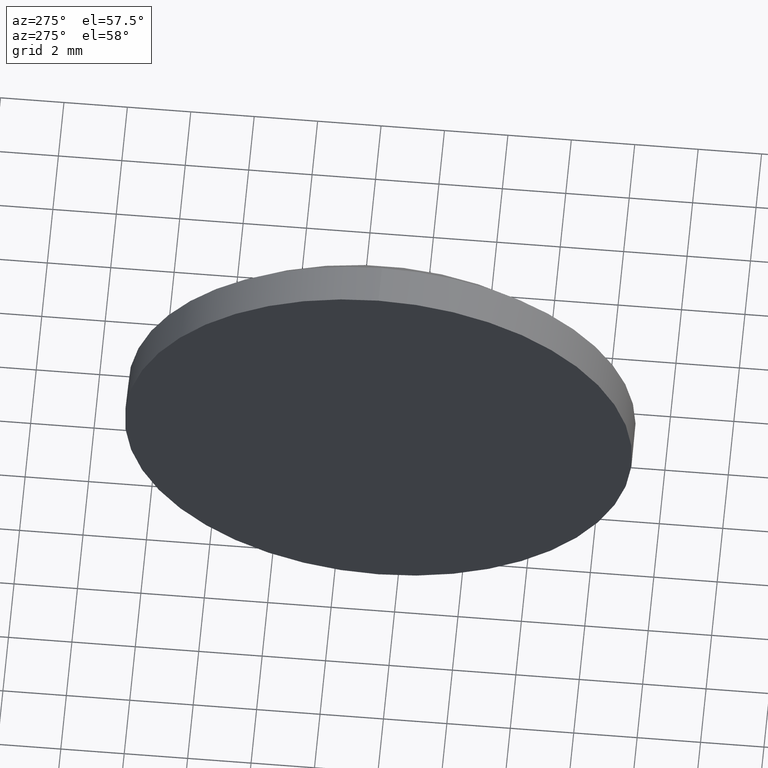
[diagram: clean part render]
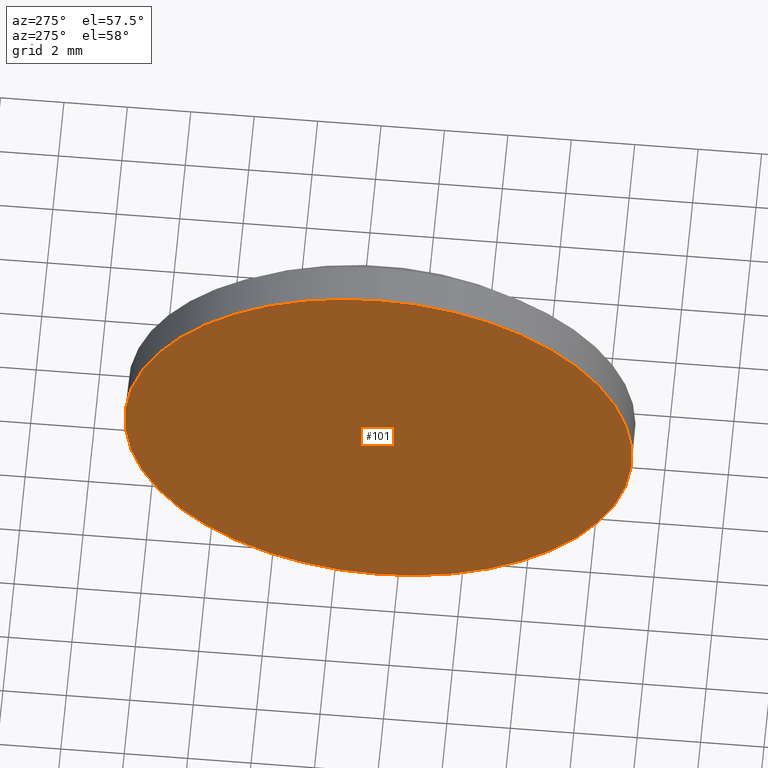
[diagram: same view with one face highlighted and labeled with its STEP entity id]
A machine part, auxiliary view. The second image highlights one B-rep face of the part: STEP entity #101.
In plain terms, the highlighted planar face has unit normal (1, 0, 0).
Its self-contained STEP definition (entity closure, byte-faithful):
#3 = AXIS2_PLACEMENT_3D ( 'NONE', #152, #55, #153 ) ;
#13 = PLANE ( 'NONE',  #3 ) ;
#29 = DIRECTION ( 'NONE',  ( 0.0000000000000000000, 0.0000000000000000000, 1.000000000000000000 ) ) ;
#34 = FACE_OUTER_BOUND ( 'NONE', #93, .T. ) ;
#35 = ORIENTED_EDGE ( 'NONE', *, *, #38, .T. ) ;
#38 = EDGE_CURVE ( 'NONE', #146, #118, #131, .T. ) ;
#55 = DIRECTION ( 'NONE',  ( 1.000000000000000000, 0.0000000000000000000, 0.0000000000000000000 ) ) ;
#56 = DIRECTION ( 'NONE',  ( -1.000000000000000000, -0.0000000000000000000, -0.0000000000000000000 ) ) ;
#85 = CARTESIAN_POINT ( 'NONE',  ( 475.1329406845434300, -39.39311848752240100, 0.0000000000000000000 ) ) ;
#93 = EDGE_LOOP ( 'NONE', ( #35, #154 ) ) ;
#101 = ADVANCED_FACE ( 'NONE', ( #34 ), #13, .F. ) ;
#106 = CARTESIAN_POINT ( 'NONE',  ( 475.1329406845434300, -39.39311848752240100, -8.000000000000000000 ) ) ;
#111 = CARTESIAN_POINT ( 'NONE',  ( 475.1329406845434300, -39.39311848752240100, 0.0000000000000000000 ) ) ;
#118 = VERTEX_POINT ( 'NONE', #106 ) ;
#131 = CIRCLE ( 'NONE', #167, 8.000000000000000000 ) ;
#143 = AXIS2_PLACEMENT_3D ( 'NONE', #85, #56, #156 ) ;
#146 = VERTEX_POINT ( 'NONE', #168 ) ;
#152 = CARTESIAN_POINT ( 'NONE',  ( 475.1329406845434300, -39.39311848752240100, 0.0000000000000000000 ) ) ;
#153 = DIRECTION ( 'NONE',  ( 0.0000000000000000000, 0.0000000000000000000, -1.000000000000000000 ) ) ;
#154 = ORIENTED_EDGE ( 'NONE', *, *, #176, .T. ) ;
#156 = DIRECTION ( 'NONE',  ( 0.0000000000000000000, 0.0000000000000000000, 1.000000000000000000 ) ) ;
#159 = DIRECTION ( 'NONE',  ( -1.000000000000000000, -0.0000000000000000000, -0.0000000000000000000 ) ) ;
#167 = AXIS2_PLACEMENT_3D ( 'NONE', #111, #159, #29 ) ;
#168 = CARTESIAN_POINT ( 'NONE',  ( 475.1329406845434300, -39.39311848752240100, 8.000000000000000000 ) ) ;
#176 = EDGE_CURVE ( 'NONE', #118, #146, #184, .T. ) ;
#184 = CIRCLE ( 'NONE', #143, 8.000000000000000000 ) ;